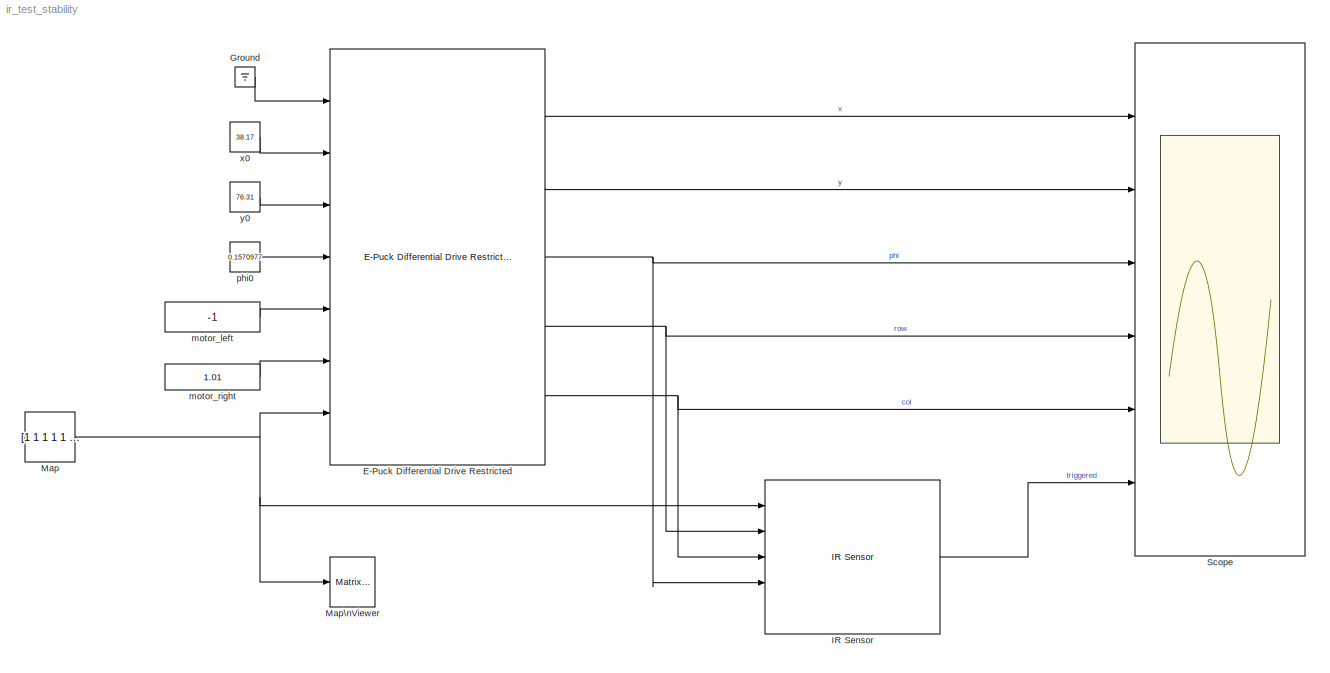
MODEL ir_test_stability
KIND model
BLOCK [Reference] E-Puck Differential Drive Restricted  REF=tinbot/E-Puck Differential Drive Restricted  (lib defined in slx_3c5c153e9850, slx_5b2796442827, +1 more)
  FunctionWithSeparateData = off
  GeneratePreprocessorConditionals = off
  Ports = [7, 5]
  SID = 40
  ShowPortLabels = FromPortIcon
  SourceBlock = tinbot/E-Puck Differential Drive Restricted
  SystemSampleTime = -1
BLOCK [Ground] Ground
  SID = 41
BLOCK [Reference] IR Sensor  REF=tinbot/IR Sensor  (lib defined in slx_3c5c153e9850, slx_5b2796442827, +1 more)
  FunctionWithSeparateData = off
  GeneratePreprocessorConditionals = off
  Ports = [5, 1]
  SID = 47
  ShowPortLabels = FromPortIcon
  SourceBlock = tinbot/IR Sensor
  SystemSampleTime = -1
BLOCK [Constant] Map
  SID = 48
  Value = [1 1 1 1 1 1 1 1 1 1 1 1 1 1 1 1 1 1 1 1 1 1 1 1 1 1 1 1 1 1 1 1 1 1 1 1 1 1 1 1 1 1 1 1 1 1 1 1 1 1 1 1 1 1 1 1 1 1 1 1 1 1 1 1 1 1 1 1 1 1 1 1 1 1 1 1 1 1 1 1 1 1 1 1 1 1 1 1 1 1 1 1 1 1 1 1 1 1 1 1 1 1 1 1 1 1 1 1 1 1 1 1 1 1 1 1 1 1 1 1 1 1 1 1 1 1 1 1 1 1 1 1 1 1 1 1 1 1 1 1 1 1 1 1 1 1 1 1 1 1 1 1 1 1 1 1 1 1 1 1 1 1 1 1 1 1 1 1 1 1 1 1 1 1 1 1 1 1 1 1 1 1 1 1 1 1 1 1 1 1 1 1 1 1 1 1 1 1 1 1...<+79601ch>
BLOCK [Reference] Map\nViewer  REF=dspsnks4/Matrix\nViewer
  AxisColorbar = on
  AxisOrigin = Lower left corner
  AxisParams = off
  AxisTickMode = Auto
  AxisZoom = off
  CMapStr = hot(256)
  FigPos = get(0,'defaultfigureposition')
  ImageParams = off
  Ports = [1]
  SID = 43
  ShowPortLabels = off
  SourceBlock = dspsnks4/Matrix\nViewer
  SourceType = Matrix Viewer
  XLabel = X-axis
  XTickRange = [0 1]
  YLabel = Y-axis
  YMax = 3
  YMin = 0
  YTickRange = [0 1]
  ZLabel = Z-axis
BLOCK [Scope] Scope
  NumInputPorts = 6
  Ports = [6]
  SID = 2
  ScopeSpecificationString = Simulink.scopes.TimeScopeBlockCfg('CurrentConfiguration', extmgr.ConfigurationSet(extmgr.Configuration('Core','General UI',true),extmgr.Configuration('Core','Source UI',true),extmgr.Configuration('Sources','WiredSimulink',true),extmgr.Configuration('Visuals','Time Domain',true,'SerializedDisplays',{struct('MinYLimReal','38.16947','MaxYLimReal','38.17477','YLabelReal','','MinYLimMag','38.16947','Ma...<+4794ch>
BLOCK [Constant] motor_left
  SID = 4
  Value = -1
BLOCK [Constant] motor_right
  SID = 5
  Value = 1.01
BLOCK [Constant] phi0
  SID = 13
  Value = 0.1570977
BLOCK [Constant] x0
  SID = 6
  Value = 38.17
BLOCK [Constant] y0
  SID = 7
  Value = 76.31
LINE E-Puck Differential Drive Restricted:1 -> Scope:1
LINE E-Puck Differential Drive Restricted:2 -> Scope:2
NET E-Puck Differential Drive Restricted:3 -> IR Sensor:4, Scope:3
NET E-Puck Differential Drive Restricted:4 -> IR Sensor:2, Scope:4
NET E-Puck Differential Drive Restricted:5 -> IR Sensor:3, Scope:5
LINE Ground:1 -> E-Puck Differential Drive Restricted:1
LINE IR Sensor:1 -> Scope:6
NET Map:1 -> E-Puck Differential Drive Restricted:7, IR Sensor:1, Map\nViewer:1
LINE motor_left:1 -> E-Puck Differential Drive Restricted:5
LINE motor_right:1 -> E-Puck Differential Drive Restricted:6
LINE phi0:1 -> E-Puck Differential Drive Restricted:4
LINE x0:1 -> E-Puck Differential Drive Restricted:2
LINE y0:1 -> E-Puck Differential Drive Restricted:3
note: NET lines group one-source signal fan-out (src -> all destinations, sorted); 1:1 wires keep LINE
